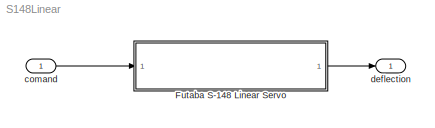
MODEL S148Linear
KIND model
CONFIG AbsTol = 1e-6
CONFIG FixedStep = auto
CONFIG MaxStep = auto
CONFIG RelTol = 1e-3
CONFIG Solver = ode45
CONFIG StartTime = 0.0
CONFIG StopTime = 10.0
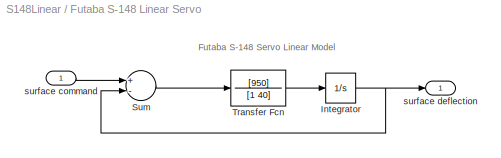
BLOCK [SubSystem] Futaba S-148 Linear Servo
  Ports = [1, 1, 0, 0, 0]
  ShowPortLabels = on
BLOCK [Integrator] Futaba S-148 Linear Servo/Integrator
  AbsoluteTolerance = auto
  ExternalReset = none
  InitialCondition = 0
  InitialConditionSource = internal
  LimitOutput = off
  LowerSaturationLimit = -inf
  Ports = [1, 1, 0, 0, 0]
  ShowSaturationPort = off
  ShowStatePort = off
  UpperSaturationLimit = inf
BLOCK [Sum] Futaba S-148 Linear Servo/Sum
  Inputs = +-
  Ports = [2, 1, 0, 0, 0]
BLOCK [TransferFcn] Futaba S-148 Linear Servo/Transfer Fcn
  Denominator = [1 40]
  Numerator = [950]
BLOCK [Inport] Futaba S-148 Linear Servo/surface command
  Port = 1
  PortWidth = -1
  SampleTime = -1
BLOCK [Outport] Futaba S-148 Linear Servo/surface deflection
  InitialOutput = []
  OutputWhenDisabled = held
  Port = 1
BLOCK [Inport] comand
  Port = 1
  PortWidth = -1
  SampleTime = -1
BLOCK [Outport] deflection
  InitialOutput = []
  OutputWhenDisabled = held
  Port = 1
NET Futaba S-148 Linear Servo/Integrator:1 -> Futaba S-148 Linear Servo/Sum:2, Futaba S-148 Linear Servo/surface deflection:1
LINE Futaba S-148 Linear Servo/Sum:1 -> Futaba S-148 Linear Servo/Transfer Fcn:1
LINE Futaba S-148 Linear Servo/Transfer Fcn:1 -> Futaba S-148 Linear Servo/Integrator:1
LINE Futaba S-148 Linear Servo/surface command:1 -> Futaba S-148 Linear Servo/Sum:1
LINE Futaba S-148 Linear Servo:1 -> deflection:1
LINE comand:1 -> Futaba S-148 Linear Servo:1
note: NET lines group one-source signal fan-out (src -> all destinations, sorted); 1:1 wires keep LINE
